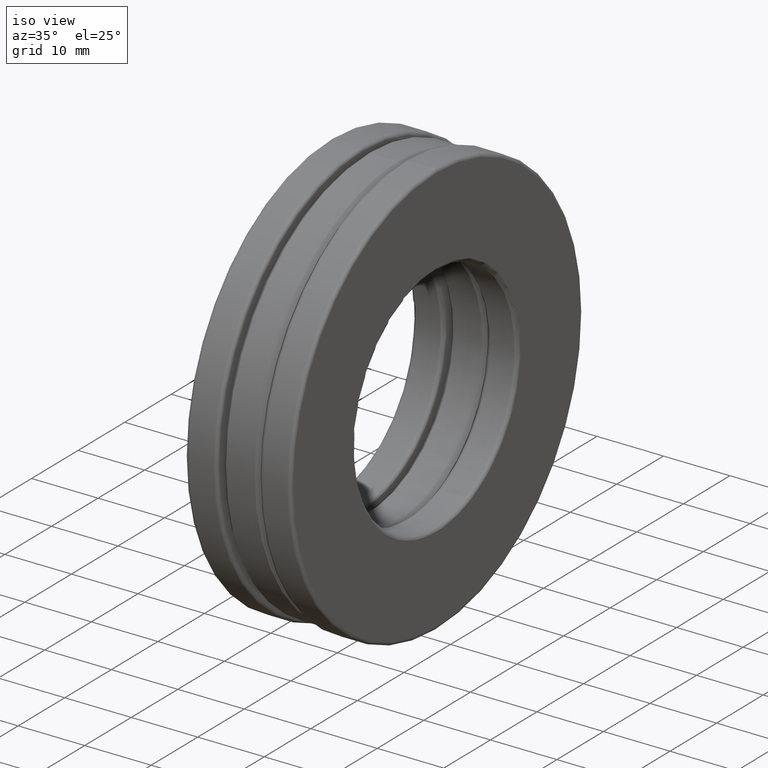
[diagram: clean part render]
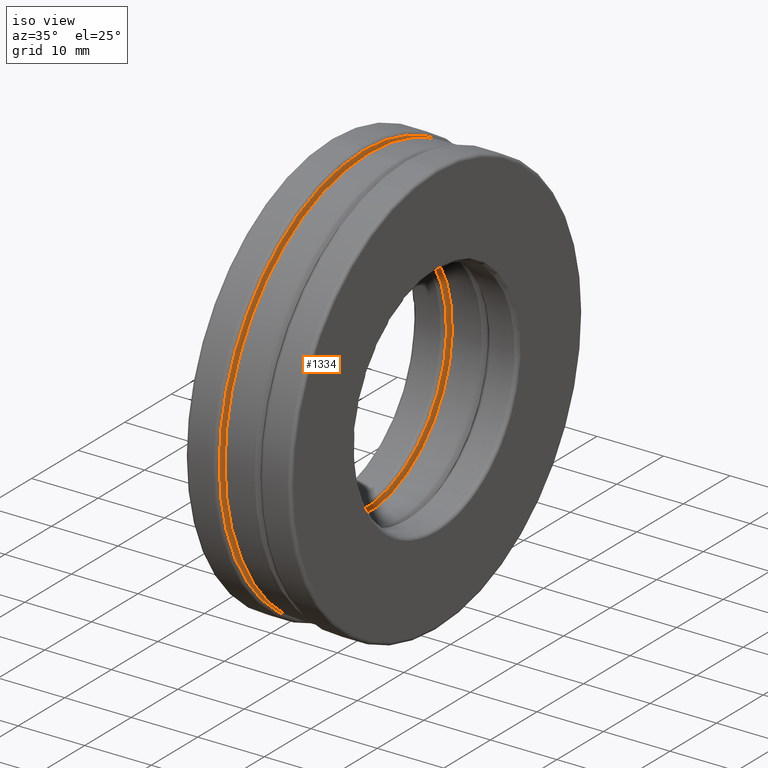
[diagram: same view with one face highlighted and labeled with its STEP entity id]
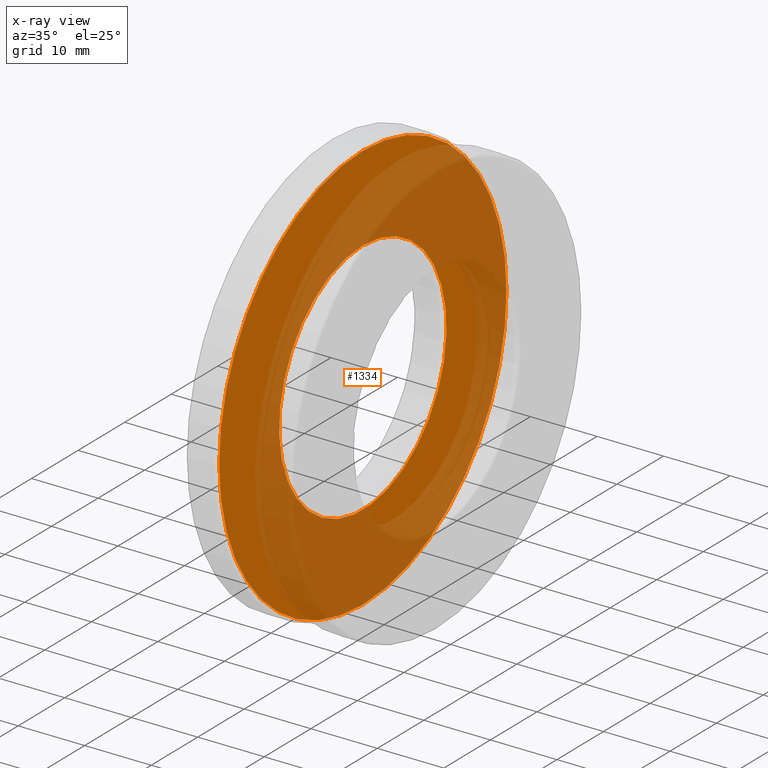
[diagram: x-ray of the same camera — body ghosted, the highlighted face saturated]
A machine part, iso view. The second image highlights one B-rep face of the part: STEP entity #1334.
The next image is the same camera in x-ray: the body ghosted, the highlighted face saturated — about 60% of this face is hidden behind the body in this view.
In plain terms, the highlighted planar face has unit normal (1, 0, 0).
Its self-contained STEP definition (entity closure, byte-faithful):
#6 = AXIS2_PLACEMENT_3D ( 'NONE', #898, #662, #547 ) ;
#20 = DIRECTION ( 'NONE',  ( 0.0000000000000000000, 0.0000000000000000000, -1.000000000000000000 ) ) ;
#95 = AXIS2_PLACEMENT_3D ( 'NONE', #685, #794, #20 ) ;
#97 = CARTESIAN_POINT ( 'NONE',  ( -0.1250000000000000600, 0.0000000000000000000, 0.7075000000000000200 ) ) ;
#218 = PLANE ( 'NONE',  #95 ) ;
#241 = CARTESIAN_POINT ( 'NONE',  ( -0.1250000000000000600, 0.0000000000000000000, 0.0000000000000000000 ) ) ;
#276 = CIRCLE ( 'NONE', #393, 0.7075000000000000200 ) ;
#287 = ORIENTED_EDGE ( 'NONE', *, *, #1304, .T. ) ;
#384 = FACE_BOUND ( 'NONE', #774, .T. ) ;
#393 = AXIS2_PLACEMENT_3D ( 'NONE', #241, #1356, #1349 ) ;
#398 = VERTEX_POINT ( 'NONE', #97 ) ;
#547 = DIRECTION ( 'NONE',  ( 0.0000000000000000000, 0.0000000000000000000, 1.000000000000000000 ) ) ;
#659 = VERTEX_POINT ( 'NONE', #1200 ) ;
#662 = DIRECTION ( 'NONE',  ( -1.000000000000000000, -0.0000000000000000000, -0.0000000000000000000 ) ) ;
#685 = CARTESIAN_POINT ( 'NONE',  ( -0.1250000000000000600, -4.210616513046028500E-018, 0.0000000000000000000 ) ) ;
#765 = EDGE_CURVE ( 'NONE', #659, #659, #1451, .T. ) ;
#774 = EDGE_LOOP ( 'NONE', ( #287 ) ) ;
#794 = DIRECTION ( 'NONE',  ( 1.000000000000000000, 0.0000000000000000000, 0.0000000000000000000 ) ) ;
#831 = EDGE_LOOP ( 'NONE', ( #949 ) ) ;
#898 = CARTESIAN_POINT ( 'NONE',  ( -0.1250000000000000600, 0.0000000000000000000, 0.0000000000000000000 ) ) ;
#949 = ORIENTED_EDGE ( 'NONE', *, *, #765, .F. ) ;
#1200 = CARTESIAN_POINT ( 'NONE',  ( -0.1250000000000000600, 0.0000000000000000000, 1.214375000000000200 ) ) ;
#1304 = EDGE_CURVE ( 'NONE', #398, #398, #276, .T. ) ;
#1334 = ADVANCED_FACE ( 'NONE', ( #384, #1426 ), #218, .T. ) ;
#1349 = DIRECTION ( 'NONE',  ( 0.0000000000000000000, 0.0000000000000000000, 1.000000000000000000 ) ) ;
#1356 = DIRECTION ( 'NONE',  ( -1.000000000000000000, -0.0000000000000000000, -0.0000000000000000000 ) ) ;
#1426 = FACE_OUTER_BOUND ( 'NONE', #831, .T. ) ;
#1451 = CIRCLE ( 'NONE', #6, 1.214375000000000200 ) ;